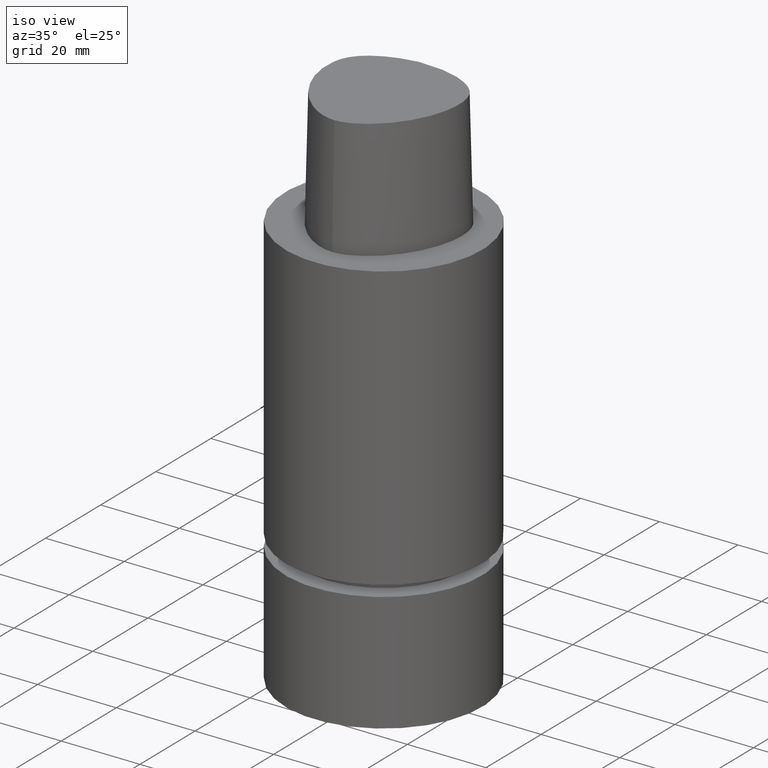
[diagram: clean part render]
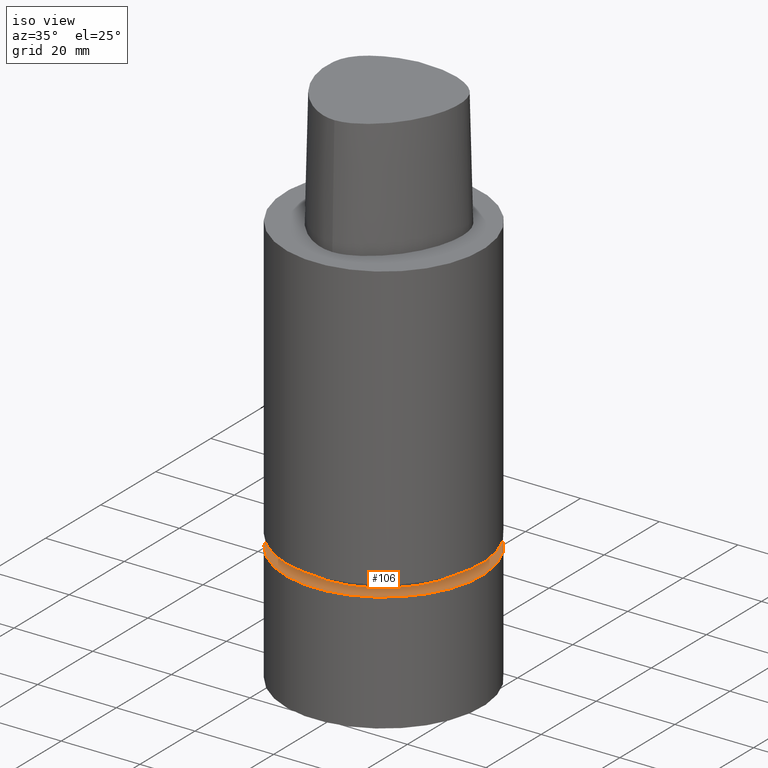
[diagram: same view with one face highlighted and labeled with its STEP entity id]
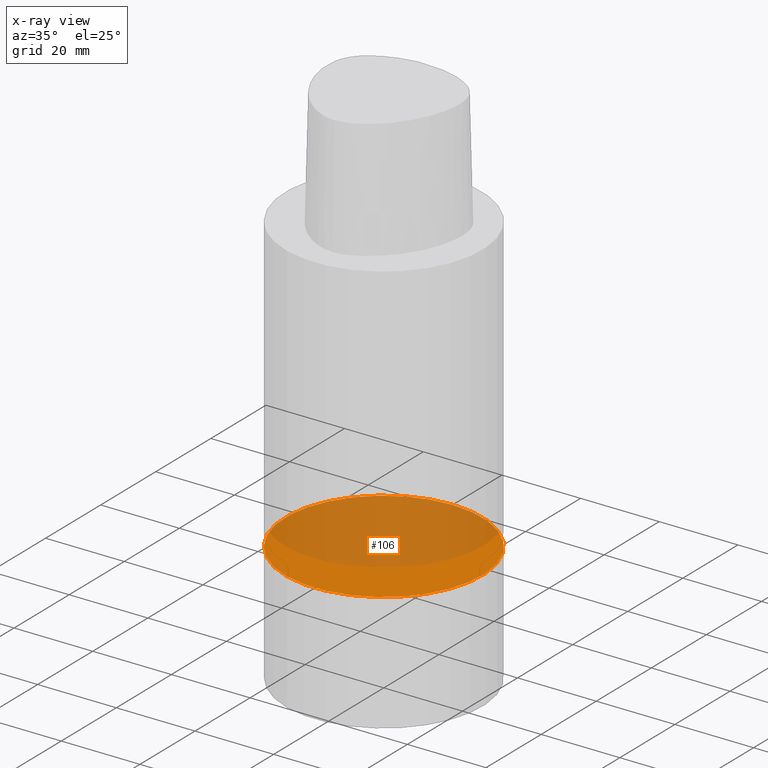
[diagram: x-ray of the same camera — body ghosted, the highlighted face saturated]
A machine part, iso view. The second image highlights one B-rep face of the part: STEP entity #106.
The next image is the same camera in x-ray: the body ghosted, the highlighted face saturated — about 64% of this face is hidden behind the body in this view.
In plain terms, the highlighted planar face has unit normal (-0, -0, 1).
Its self-contained STEP definition (entity closure, byte-faithful):
#106=ADVANCED_FACE('Unnamed[1]',(#214),#215,.T.);
#122=EDGE_CURVE('Unnamed[1]',#238,#238,#239,.T.);
#214=FACE_OUTER_BOUND('',#489,.T.);
#215=PLANE('',#490);
#238=VERTEX_POINT('',#902);
#239=CIRCLE('',#903,25.0);
#489=EDGE_LOOP('',(#976));
#490=AXIS2_PLACEMENT_3D('',#977,#978,#979);
#902=CARTESIAN_POINT('',(4.5801790288111E-015,25.0,-74.8));
#903=AXIS2_PLACEMENT_3D('',#1005,#1006,#1007);
#976=ORIENTED_EDGE('',*,*,#122,.F.);
#977=CARTESIAN_POINT('',(4.5801790288111E-015,12.5,-74.8));
#978=DIRECTION('',(-6.12323399573677E-017,-1.22464679914735E-016,1.0));
#979=DIRECTION('',(1.23259516440783E-032,-1.0,-1.22464679914735E-016));
#1005=CARTESIAN_POINT('',(4.5801790288111E-015,9.1603580576222E-015,-74.8));
#1006=DIRECTION('',(6.12323399573677E-017,1.22464679914735E-016,-1.0));
#1007=DIRECTION('',(-1.23259516440783E-032,1.0,1.22464679914735E-016));